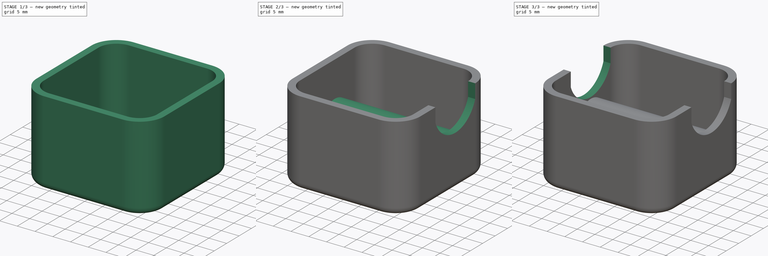
[diagram: build sequence overview — one tinted view per stage of 3, left to right]
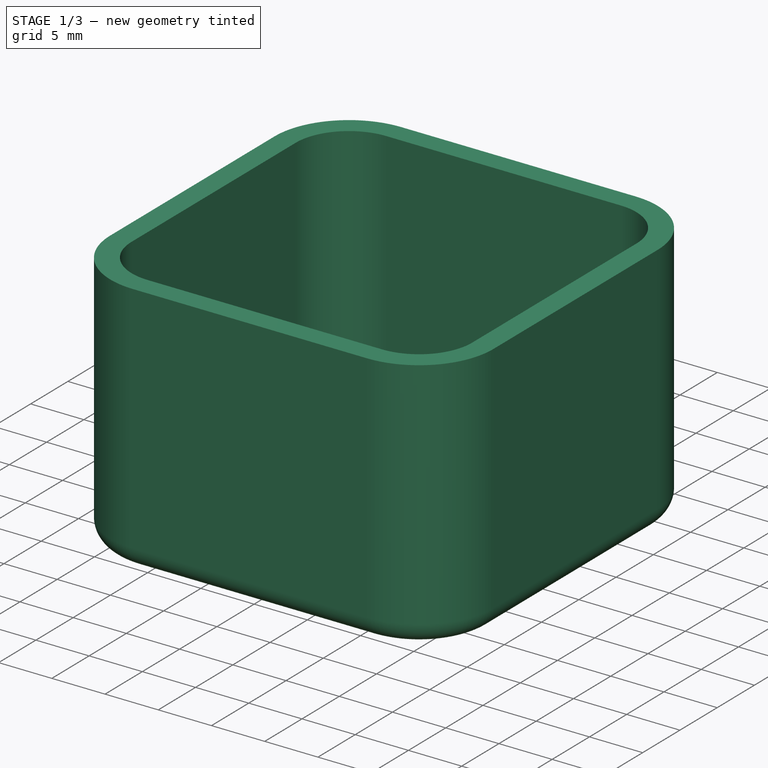
[diagram: stage 1 of 3 — iso view after this stage's code; geometry added in this stage tinted green]
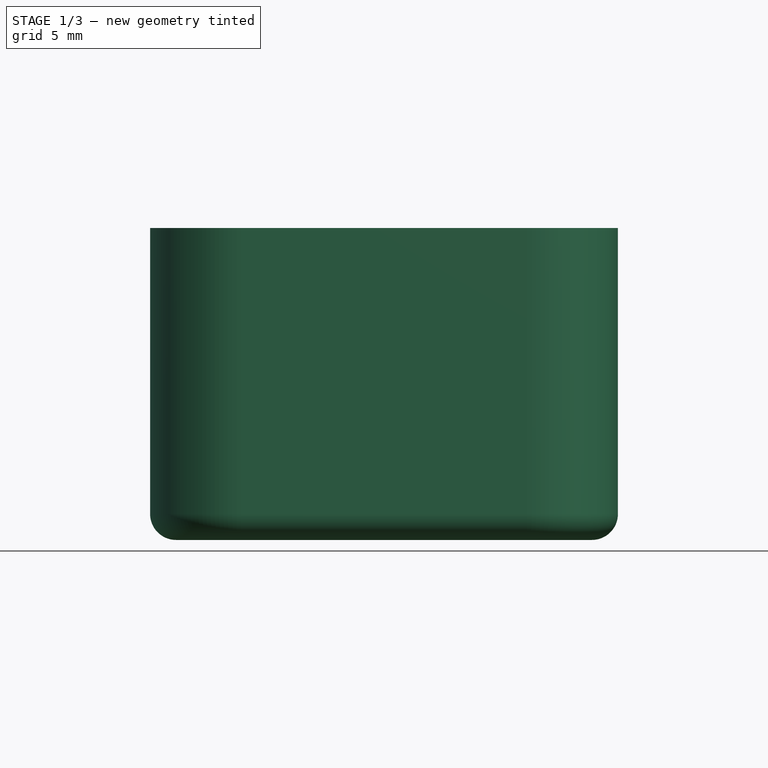
[diagram: stage 1 of 3 — front view after this stage's code; geometry added in this stage tinted green]
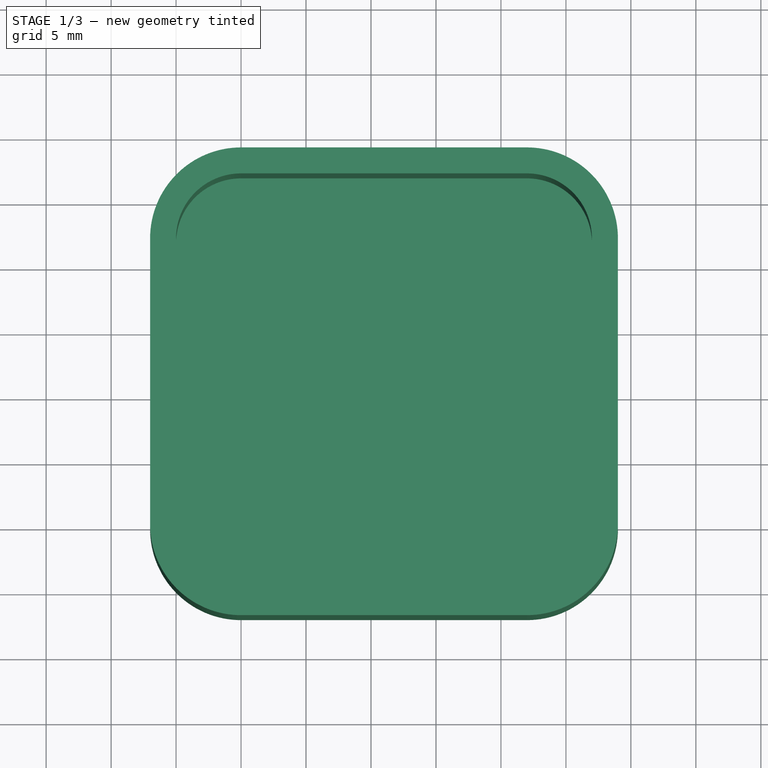
[diagram: stage 1 of 3 — top view after this stage's code; geometry added in this stage tinted green]
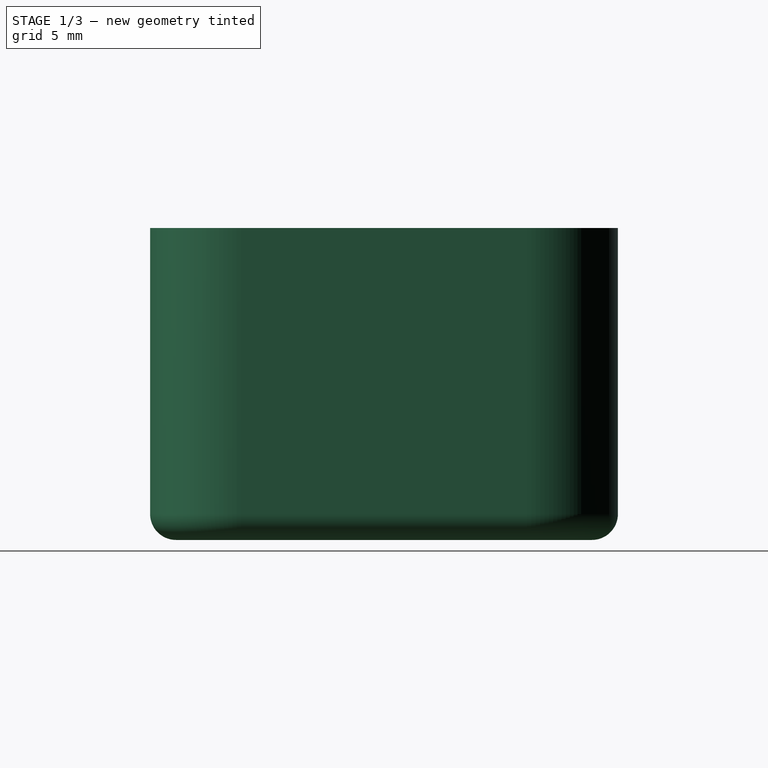
[diagram: stage 1 of 3 — right view after this stage's code; geometry added in this stage tinted green]
FCSTD DOCUMENT  (FreeCAD 0.16R6706 (Git))
Label: stand
License: All rights reserved
LicenseURL: http://en.wikipedia.org/wiki/All_rights_reserved
objects: Sketcher::SketchObject×5, PartDesign::Pocket×3, Drawing::FeatureViewPart×3, PartDesign::Pad×2, Part::Thickness×1, Drawing::FeaturePage×1
note: 16 computed .brp shape members not serialized (recipe doc carries the construction recipe); baked Part::Feature solids carry a one-line shape summary decoded from their .brp

FEATURE [Sketcher::SketchObject] Sketch
  sketch-geometry (8):
    g0: LineSegment StartX=-1e-12 StartY=32 StartZ=0 EndX=22 EndY=32 EndZ=0
    g1: LineSegment StartX=27 StartY=27 StartZ=0 EndX=27 EndY=5 EndZ=0
    g2: LineSegment StartX=22 StartY=0 StartZ=0 EndX=0 EndY=0 EndZ=0
    g3: LineSegment StartX=-5 StartY=5 StartZ=0 EndX=-5 EndY=27 EndZ=0
    g4: ArcOfCircle CenterX=-1e-12 CenterY=27 CenterZ=0 NormalX=0 NormalY=0 NormalZ=1 Radius=5 StartAngle=1.5708 EndAngle=3.14159
    g5: ArcOfCircle CenterX=-1e-12 CenterY=5 CenterZ=0 NormalX=0 NormalY=0 NormalZ=1 Radius=5 StartAngle=3.14159 EndAngle=4.71239
    g6: ArcOfCircle CenterX=22 CenterY=27 CenterZ=0 NormalX=0 NormalY=0 NormalZ=1 Radius=5 StartAngle=0 EndAngle=1.5708
    g7: ArcOfCircle CenterX=22 CenterY=5 CenterZ=0 NormalX=0 NormalY=0 NormalZ=1 Radius=5 StartAngle=4.71239 EndAngle=6.28319
  constraints (19):
    c: Horizontal(g0)
    c: Horizontal(g2)
    c: Vertical(g1)
    c: Vertical(g3)
    c: Tangent(g0,g4) = 1.5708
    c: Tangent(g3,g4) = 1.5708
    c: Tangent(g3,g5) = 1.5708
    c: Tangent(g2,g5) = 1.5708
    c: Tangent(g0,g6) = 1.5708
    c: Tangent(g1,g6) = 1.5708
    c: Tangent(g1,g7) = 1.5708
    c: Tangent(g2,g7) = 1.5708
    c: Radius(g4) = 5
    c: Radius(g5) = 5
    c: Radius(g6) = 5
    c: Radius(g7) = 5
    c: DistanceY(g2,g0) = 32
    c: DistanceX(g3,g1) = 32
    c: Coincident(g2,g-1)
FEATURE [PartDesign::Pad] Pad
  Length = 22
  Length2 = 100
  Sketch = -> Sketch
  Type = 0
FEATURE [Part::Thickness] Thickness
  Faces = -> Pad [Face10]
  Intersection = false
  Join = 0
  Mode = 0
  SelfIntersection = false
  Value = 2
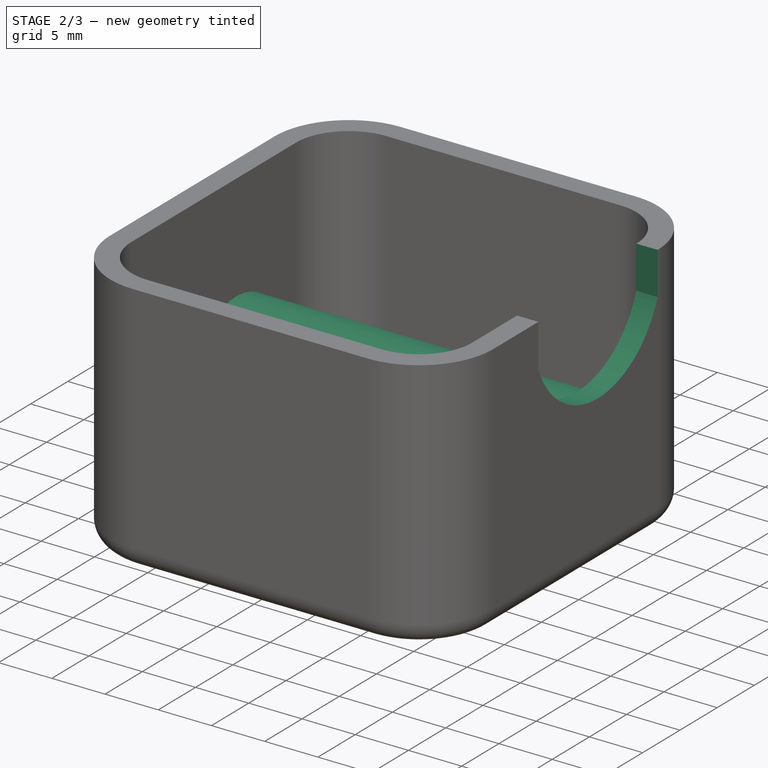
[diagram: stage 2 of 3 — iso view after this stage's code; geometry added in this stage tinted green]
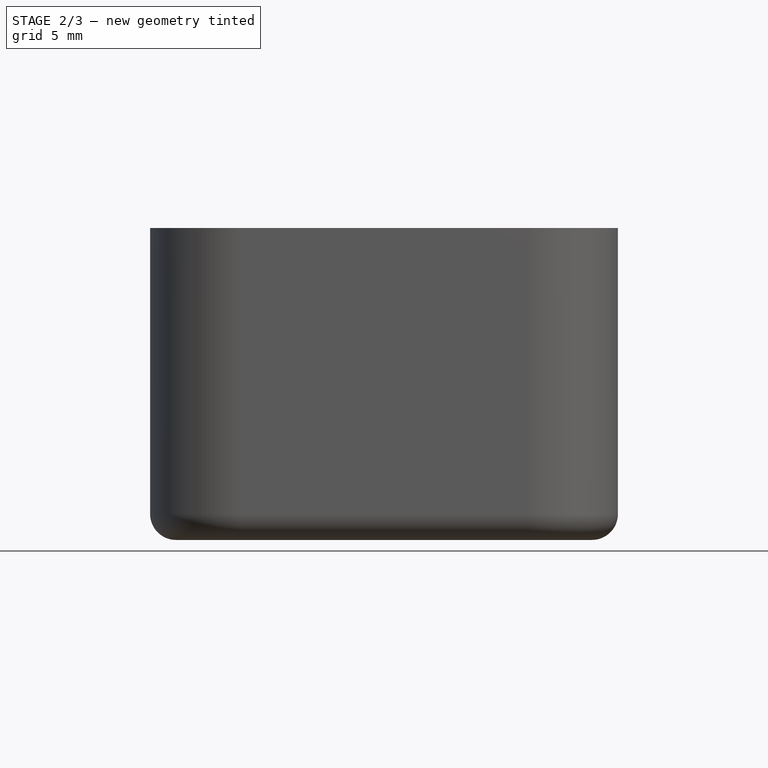
[diagram: stage 2 of 3 — front view after this stage's code; geometry added in this stage tinted green]
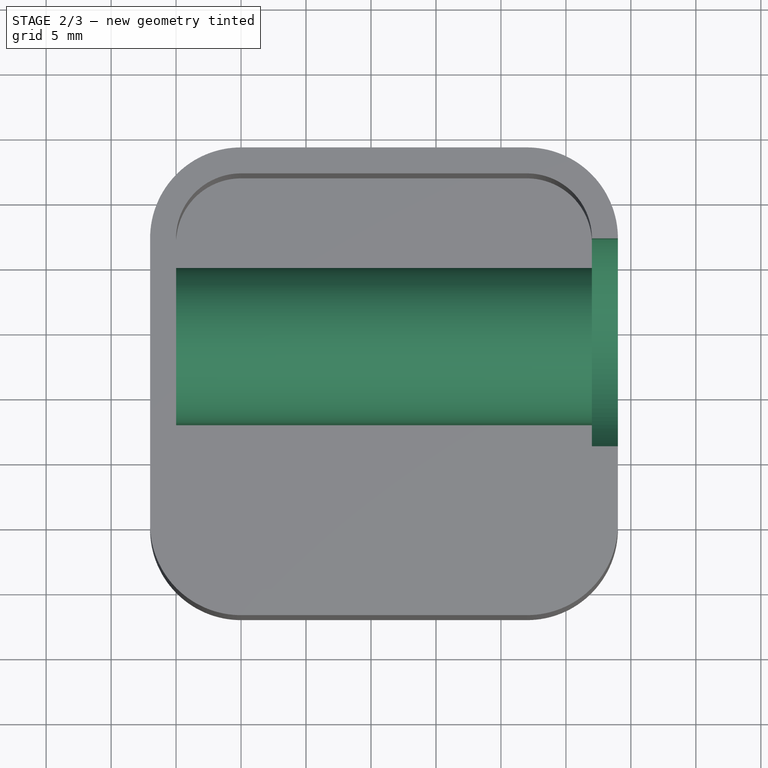
[diagram: stage 2 of 3 — top view after this stage's code; geometry added in this stage tinted green]
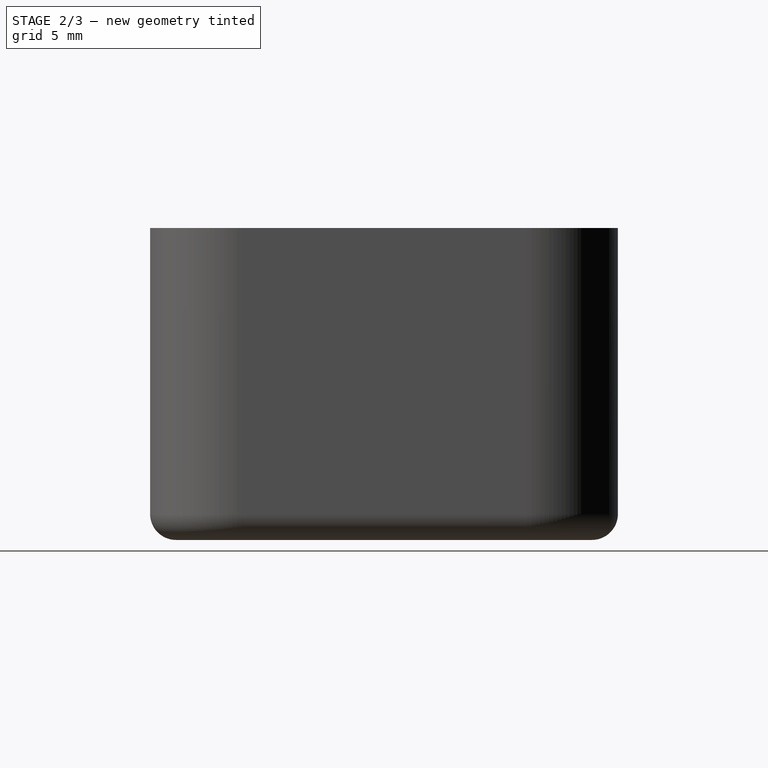
[diagram: stage 2 of 3 — right view after this stage's code; geometry added in this stage tinted green]
FEATURE [Sketcher::SketchObject] Sketch001
  ExternalGeometry = -> [Thickness]
  Placement = pos=(29,0,0) rot=(0.57735,0.57735,0.57735;2.0944rad)
  Support = -> Thickness [Face15]
  sketch-geometry (4):
    g0: LineSegment StartX=13 StartY=6 StartZ=0 EndX=13 EndY=0 EndZ=0
    g1: LineSegment StartX=25 StartY=6 StartZ=0 EndX=25 EndY=0 EndZ=0
    g2: LineSegment StartX=13 StartY=0 StartZ=0 EndX=25 EndY=0 EndZ=0
    g3: ArcOfCircle CenterX=19 CenterY=6 CenterZ=0 NormalX=0 NormalY=0 NormalZ=1 Radius=6 StartAngle=0 EndAngle=3.14159
  constraints (13):
    c: Vertical(g0)
    c: PointOnObject(g1,g-1)
    c: Vertical(g1)
    c: Horizontal(g2)
    c: Coincident(g0,g3)
    c: Coincident(g3,g1)
    c: Coincident(g0,g2)
    c: Coincident(g2,g1)
    c: DistanceY(g0,g0) = 6
    c: DistanceY(g1,g1) = 6
    c: DistanceY(g0,g3) = 6
    c: DistanceX(g0,g1) = 12
    c: DistanceX(g3,g-3) = 13
FEATURE [PartDesign::Pad] Pad001
  Length = 10
  Length2 = 100
  Reversed = true
  Sketch = -> Sketch001
  Type = 1
FEATURE [Sketcher::SketchObject] Sketch002
  ExternalGeometry = -> [Pad001]
  Placement = pos=(29,0,0) rot=(0.57735,0.57735,0.57735;2.0944rad)
  Support = -> Pad001 [Face18]
  sketch-geometry (4):
    g0: LineSegment StartX=11 StartY=22 StartZ=0 EndX=11 EndY=18 EndZ=0
    g1: LineSegment StartX=11 StartY=22 StartZ=0 EndX=27 EndY=22 EndZ=0
    g2: LineSegment StartX=27 StartY=22 StartZ=0 EndX=27 EndY=18 EndZ=0
    g3: ArcOfCircle CenterX=19 CenterY=21 CenterZ=0 NormalX=0 NormalY=0 NormalZ=1 Radius=8.544 StartAngle=3.50036 EndAngle=5.92441
  constraints (13):
    c: Vertical(g0)
    c: Coincident(g0,g1)
    c: Coincident(g1,g2)
    c: Coincident(g0,g3)
    c: Coincident(g3,g2)
    c: DistanceX(g3,g-3) = 13
    c: DistanceY(g-1,g3) = 21
    c: DistanceY(g0,g0) = 4
    c: DistanceX(g0,g1) = 16
    c: DistanceY(g2,g1) = 4
    c: DistanceY(g1,g-3) = 0
    c: DistanceY(g0,g-3) = 0
    c: DistanceX(g0,g3) = 8
FEATURE [PartDesign::Pocket] Pocket
  Length = 5
  Sketch = -> Sketch002
  Type = 2
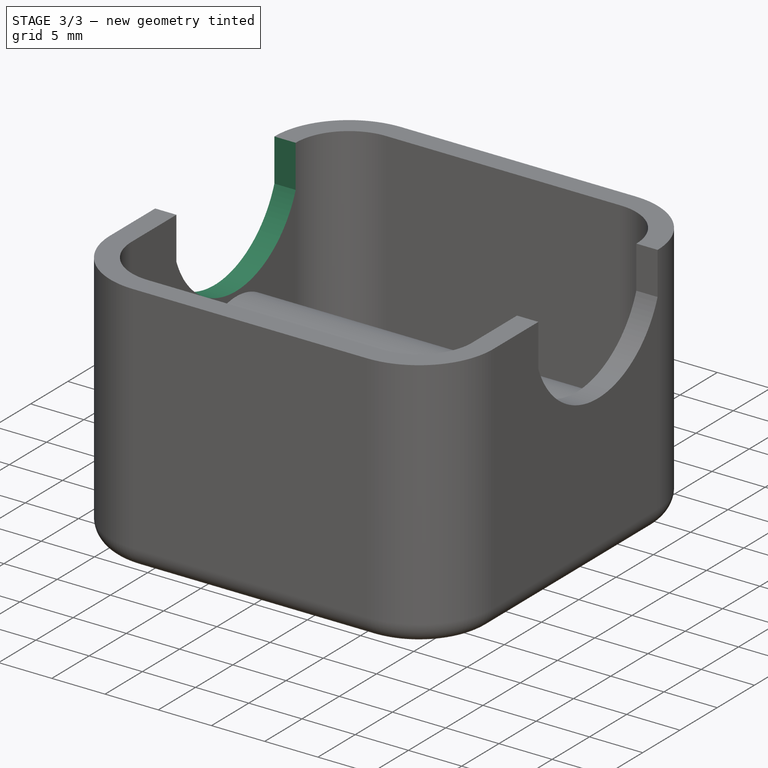
[diagram: stage 3 of 3 — iso view after this stage's code; geometry added in this stage tinted green]
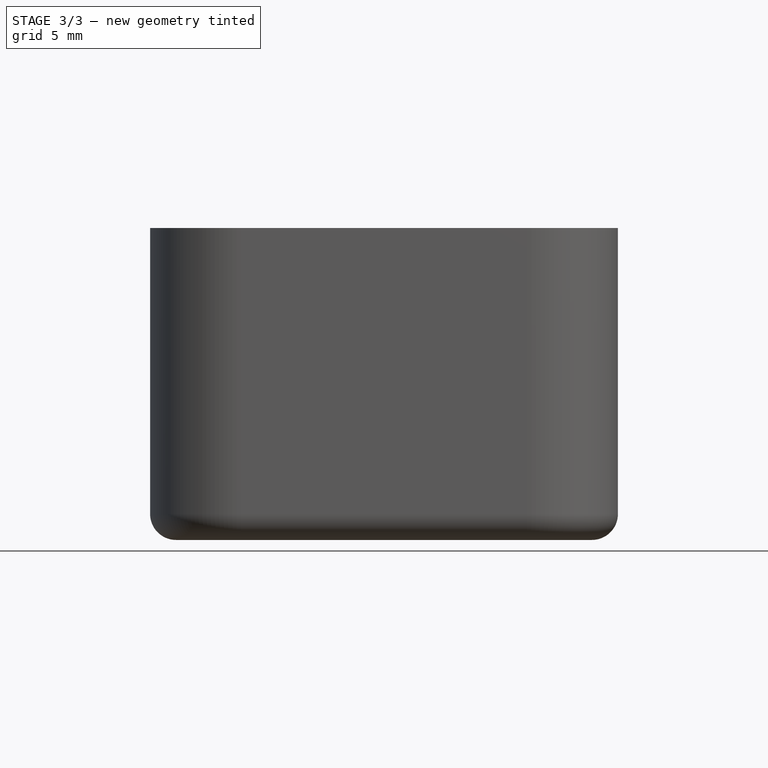
[diagram: stage 3 of 3 — front view after this stage's code; geometry added in this stage tinted green]
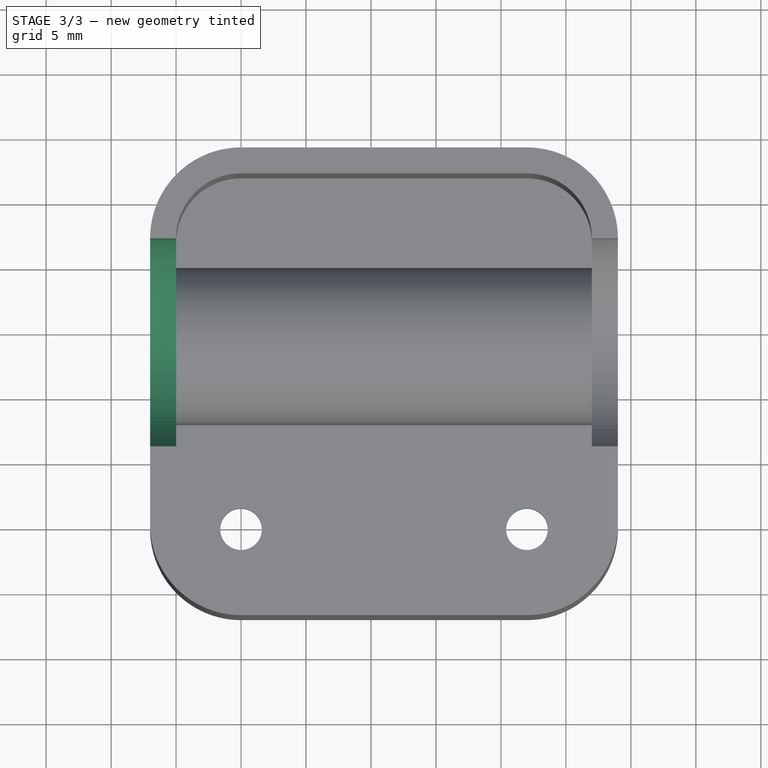
[diagram: stage 3 of 3 — top view after this stage's code; geometry added in this stage tinted green]
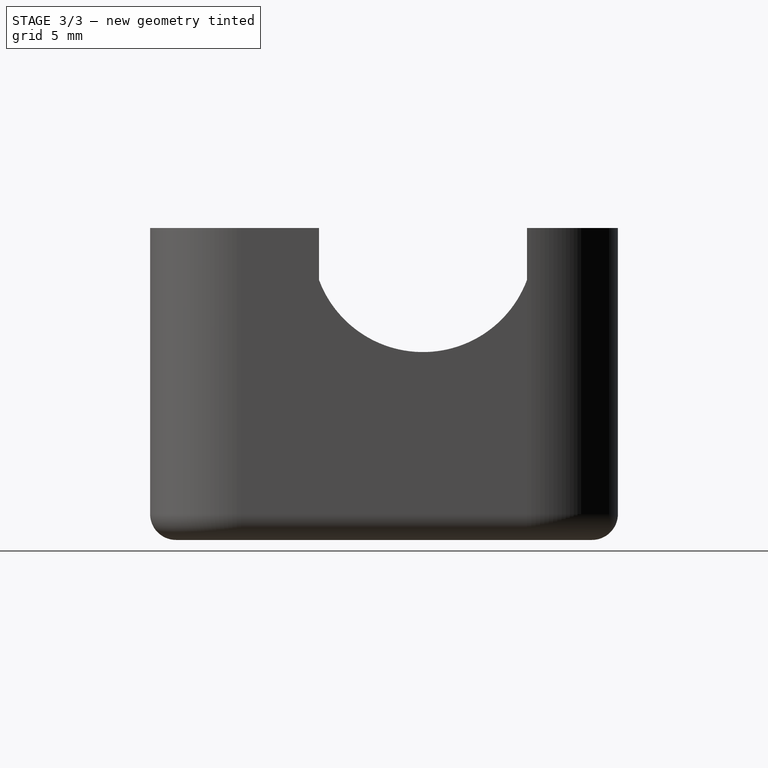
[diagram: stage 3 of 3 — right view after this stage's code; geometry added in this stage tinted green]
FEATURE [Sketcher::SketchObject] Sketch003
  ExternalGeometry = -> [Pocket]
  Placement = pos=(-7,0,0) rot=(0.57735,-0.57735,-0.57735;2.0944rad)
  Support = -> Pocket [Face20]
  sketch-geometry (4):
    g0: LineSegment StartX=-27 StartY=22 StartZ=0 EndX=-27 EndY=18 EndZ=0
    g1: LineSegment StartX=-11 StartY=22 StartZ=0 EndX=-11 EndY=18 EndZ=0
    g2: LineSegment StartX=-27 StartY=22 StartZ=0 EndX=-11 EndY=22 EndZ=0
    g3: ArcOfCircle CenterX=-19 CenterY=21 CenterZ=0 NormalX=0 NormalY=0 NormalZ=1 Radius=8.544 StartAngle=3.50036 EndAngle=5.92441
  constraints (13):
    c: Vertical(g0)
    c: Coincident(g3,g0)
    c: Coincident(g1,g3)
    c: Coincident(g0,g2)
    c: Coincident(g2,g1)
    c: DistanceX(g0,g1) = 16
    c: DistanceX(g0,g3) = 8
    c: DistanceY(g0,g0) = 4
    c: DistanceY(g1,g1) = 4
    c: DistanceY(g-1,g3) = 21
    c: DistanceY(g1,g-3) = 0
    c: DistanceY(g0,g-3) = 0
    c: DistanceX(g-4,g3) = 13
FEATURE [PartDesign::Pocket] Pocket001
  Length = 0
  Sketch = -> Sketch003
  Type = 2
FEATURE [Sketcher::SketchObject] Sketch004
  ExternalGeometry = -> [Pocket001]
  Placement = pos=(0,0,-2) rot=(1,0,0;3.14159rad)
  Support = -> Pocket001 [Face33]
  sketch-geometry (2):
    g0: Circle CenterX=0 CenterY=-5 CenterZ=0 NormalX=0 NormalY=0 NormalZ=1 Radius=1.6
    g1: Circle CenterX=22 CenterY=-5 CenterZ=0 NormalX=0 NormalY=0 NormalZ=1 Radius=1.6
  constraints (6):
    c: Radius(g0) = 1.6
    c: Radius(g1) = 1.6
    c: DistanceY(g0,g-1) = 5
    c: DistanceY(g1,g-1) = 5
    c: DistanceX(g-1,g0) = 0
    c: DistanceX(g1,g-4) = 0
FEATURE [PartDesign::Pocket] Pocket002
  Length = 5
  Sketch = -> Sketch004
  Type = 2
FEATURE [Drawing::FeatureViewPart] Ortho  label="Ortho_0_0"
  Direction = (1,0,0)
  HiddenWidth = 0.15
  LineWidth = 0.35
  Rotation = -90
  Scale = 1.5
  ShowHiddenLines = true
  ShowSmoothLines = false
  Source = -> Pocket002
  Tolerance = 0.05
  ViewResult = <blob: 8473 chars omitted>
  Visible = true
  X = 124.5
  Y = 132.333
FEATURE [Drawing::FeatureViewPart] Ortho001  label="Ortho_-1_1"
  Direction = (0.57735,-0.57735,0.57735)
  HiddenWidth = 0.15
  LineWidth = 0.35
  Rotation = 60
  Scale = 1.5
  ShowHiddenLines = true
  ShowSmoothLines = false
  Source = -> Pocket002
  Tolerance = 0.05
  ViewResult = <blob: 7669 chars omitted>
  Visible = true
  X = 37.1122
  Y = 69.976
FEATURE [Drawing::FeatureViewPart] Ortho002  label="Ortho_1_1"
  Direction = (0.57735,0.57735,0.57735)
  HiddenWidth = 0.15
  LineWidth = 0.35
  Rotation = 120
  Scale = 1.5
  ShowHiddenLines = true
  ShowSmoothLines = false
  Source = -> Pocket002
  Tolerance = 0.05
  ViewResult = <blob: 7952 chars omitted>
  Visible = true
  X = 225.947
  Y = 50.3801
FEATURE [Drawing::FeaturePage] Page
  EditableTexts = Designed by Name | Date | Scale | Weight | Title | Subtitle | Drawing number | Sheet
  Group = -> [Ortho,Ortho001,Ortho002]
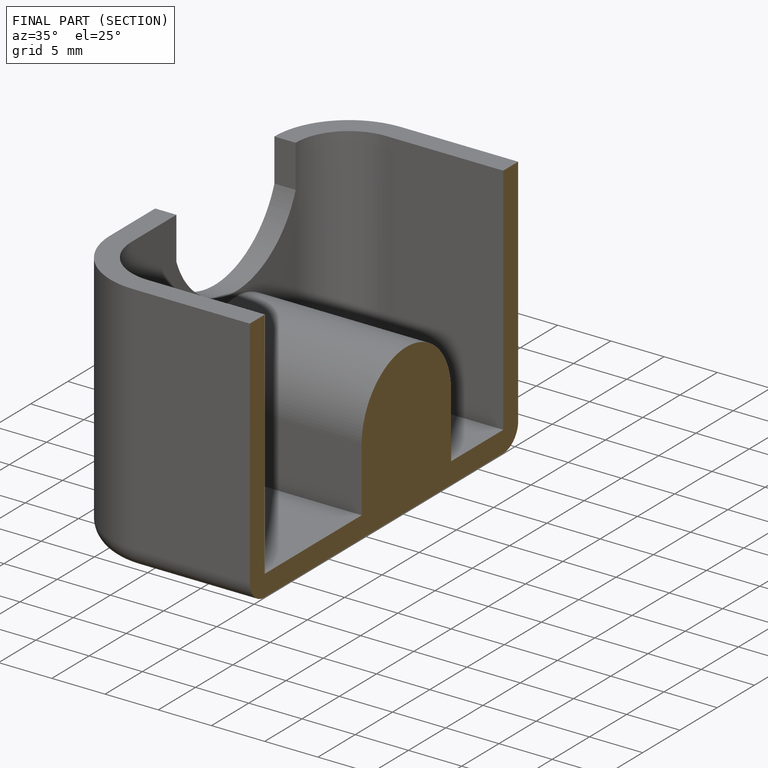
[diagram: finished part — half-section view (interior)]
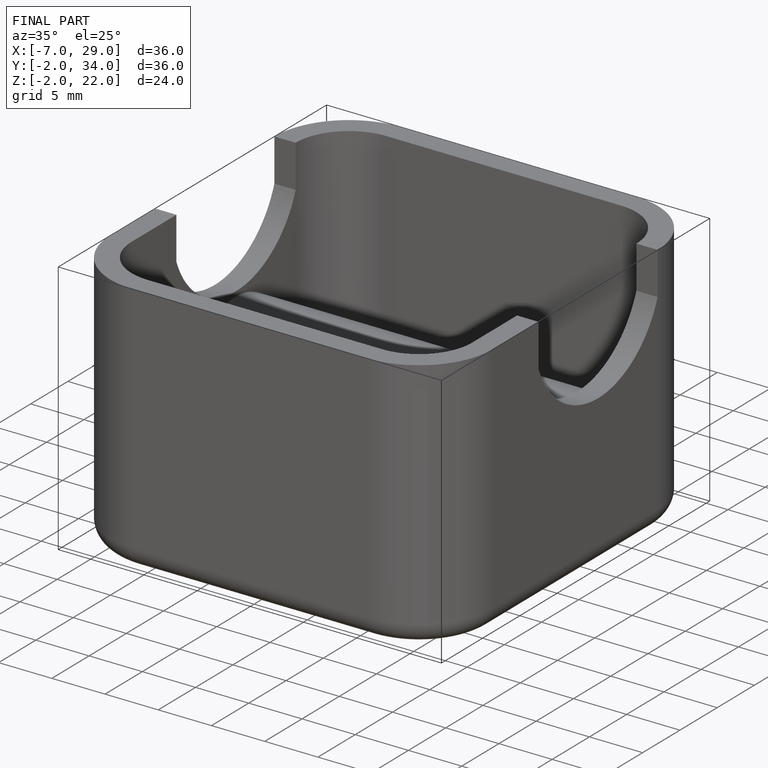
[diagram: finished part — iso view with bounding-box wireframe]
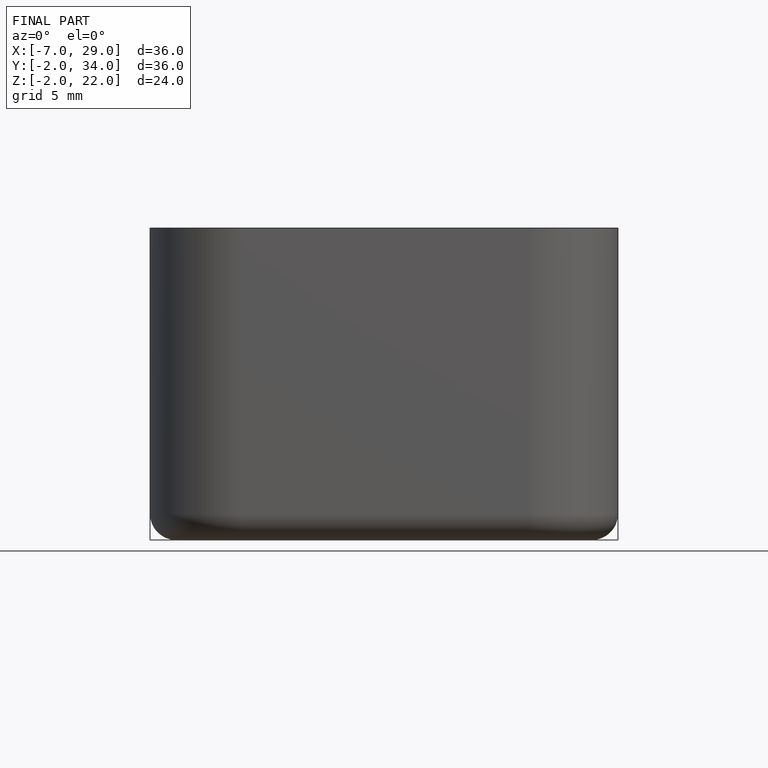
[diagram: finished part — front view with bounding-box wireframe]
